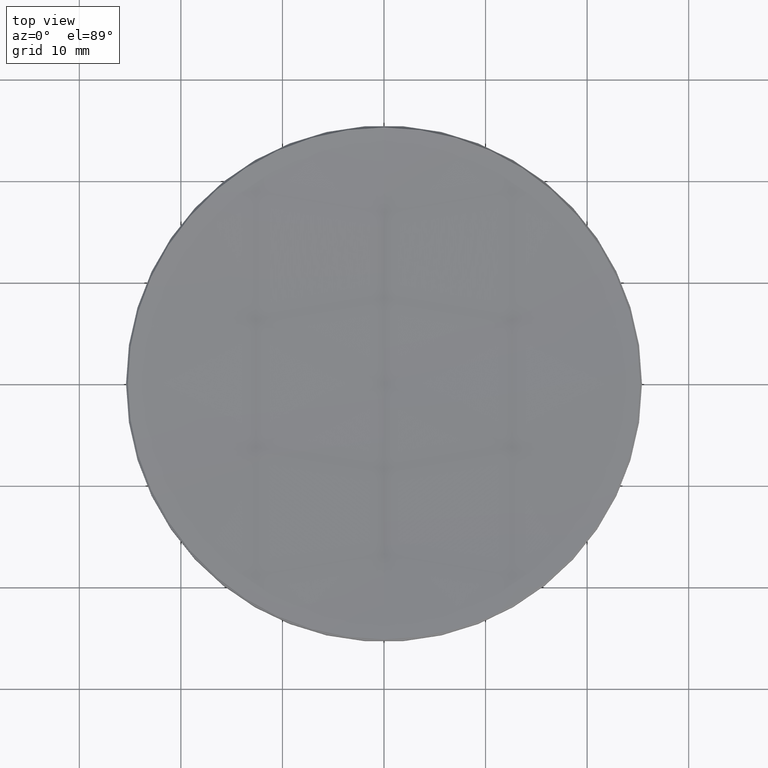
[diagram: clean part render]
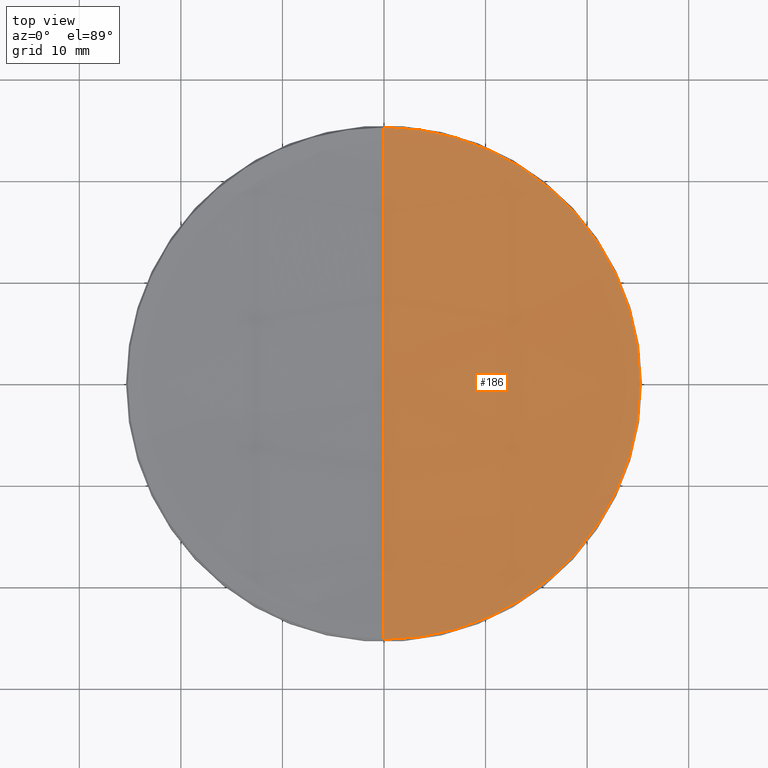
[diagram: same view with one face highlighted and labeled with its STEP entity id]
A machine part, top view. The second image highlights one B-rep face of the part: STEP entity #186.
In plain terms, the highlighted spherical surface has radius 327.59 mm.
Its self-contained STEP definition (entity closure, byte-faithful):
#14 = EDGE_CURVE ( 'NONE', #105, #297, #69, .T. ) ;
#29 = DIRECTION ( 'NONE',  ( 1.000000000000000000, 0.000000000000000000, 0.000000000000000000 ) ) ;
#35 = ORIENTED_EDGE ( 'NONE', *, *, #148, .T. ) ;
#38 = DIRECTION ( 'NONE',  ( -1.000000000000000000, 0.000000000000000000, 0.000000000000000000 ) ) ;
#50 = AXIS2_PLACEMENT_3D ( 'NONE', #241, #75, #145 ) ;
#52 = DIRECTION ( 'NONE',  ( -0.000000000000000000, -0.000000000000000000, 1.000000000000000000 ) ) ;
#54 = CARTESIAN_POINT ( 'NONE',  ( 0.000000000000000000, 0.000000000000000000, 16.98561757145522577 ) ) ;
#64 = EDGE_CURVE ( 'NONE', #105, #230, #251, .T. ) ;
#68 = CARTESIAN_POINT ( 'NONE',  ( 0.000000000000000000, 25.21438242854472023, 16.98561757145519735 ) ) ;
#69 = CIRCLE ( 'NONE', #107, 327.5899999999999750 ) ;
#75 = DIRECTION ( 'NONE',  ( 1.000000000000000000, 0.000000000000000000, 0.000000000000000000 ) ) ;
#84 = VERTEX_POINT ( 'NONE', #219 ) ;
#86 = EDGE_LOOP ( 'NONE', ( #162, #96, #233, #35 ) ) ;
#96 = ORIENTED_EDGE ( 'NONE', *, *, #14, .T. ) ;
#105 = VERTEX_POINT ( 'NONE', #278 ) ;
#107 = AXIS2_PLACEMENT_3D ( 'NONE', #147, #115, #201 ) ;
#115 = DIRECTION ( 'NONE',  ( -1.000000000000000000, 1.224646799147353207E-16, 0.000000000000000000 ) ) ;
#118 = DIRECTION ( 'NONE',  ( 0.000000000000000000, 1.000000000000000000, 0.000000000000000000 ) ) ;
#127 = EDGE_CURVE ( 'NONE', #297, #84, #247, .T. ) ;
#139 = AXIS2_PLACEMENT_3D ( 'NONE', #54, #286, #158 ) ;
#145 = DIRECTION ( 'NONE',  ( 0.000000000000000000, 0.000000000000000000, -1.000000000000000000 ) ) ;
#147 = CARTESIAN_POINT ( 'NONE',  ( 0.000000000000000000, 0.000000000000000000, 343.6038090714803843 ) ) ;
#148 = EDGE_CURVE ( 'NONE', #84, #230, #202, .T. ) ;
#158 = DIRECTION ( 'NONE',  ( 1.000000000000000000, 0.000000000000000000, 0.000000000000000000 ) ) ;
#162 = ORIENTED_EDGE ( 'NONE', *, *, #64, .F. ) ;
#177 = AXIS2_PLACEMENT_3D ( 'NONE', #203, #52, #29 ) ;
#186 = ADVANCED_FACE ( 'NONE', ( #316 ), #265, .F. ) ;
#201 = DIRECTION ( 'NONE',  ( -1.224646799147353207E-16, -1.000000000000000000, 0.000000000000000000 ) ) ;
#202 = CIRCLE ( 'NONE', #177, 25.21438242854474154 ) ;
#203 = CARTESIAN_POINT ( 'NONE',  ( 0.000000000000000000, 0.000000000000000000, 16.98561757145522577 ) ) ;
#219 = CARTESIAN_POINT ( 'NONE',  ( 25.21438242854474154, 3.099237071596867842E-15, 16.98561757145522577 ) ) ;
#230 = VERTEX_POINT ( 'NONE', #68 ) ;
#233 = ORIENTED_EDGE ( 'NONE', *, *, #127, .T. ) ;
#239 = CARTESIAN_POINT ( 'NONE',  ( 0.000000000000000000, 0.000000000000000000, 343.6038090714803843 ) ) ;
#241 = CARTESIAN_POINT ( 'NONE',  ( 0.000000000000000000, 0.000000000000000000, 343.6038090714803843 ) ) ;
#247 = CIRCLE ( 'NONE', #139, 25.21438242854474154 ) ;
#251 = CIRCLE ( 'NONE', #50, 327.5899999999999750 ) ;
#260 = AXIS2_PLACEMENT_3D ( 'NONE', #239, #38, #118 ) ;
#265 = SPHERICAL_SURFACE ( 'NONE', #260, 327.5899999999999750 ) ;
#278 = CARTESIAN_POINT ( 'NONE',  ( 0.000000000000000000, 2.005910224663407022E-14, 16.01380907148036670 ) ) ;
#286 = DIRECTION ( 'NONE',  ( -0.000000000000000000, -0.000000000000000000, 1.000000000000000000 ) ) ;
#297 = VERTEX_POINT ( 'NONE', #315 ) ;
#315 = CARTESIAN_POINT ( 'NONE',  ( -3.087871273359455663E-15, -25.21438242854472023, 16.98561757145519735 ) ) ;
#316 = FACE_OUTER_BOUND ( 'NONE', #86, .T. ) ;